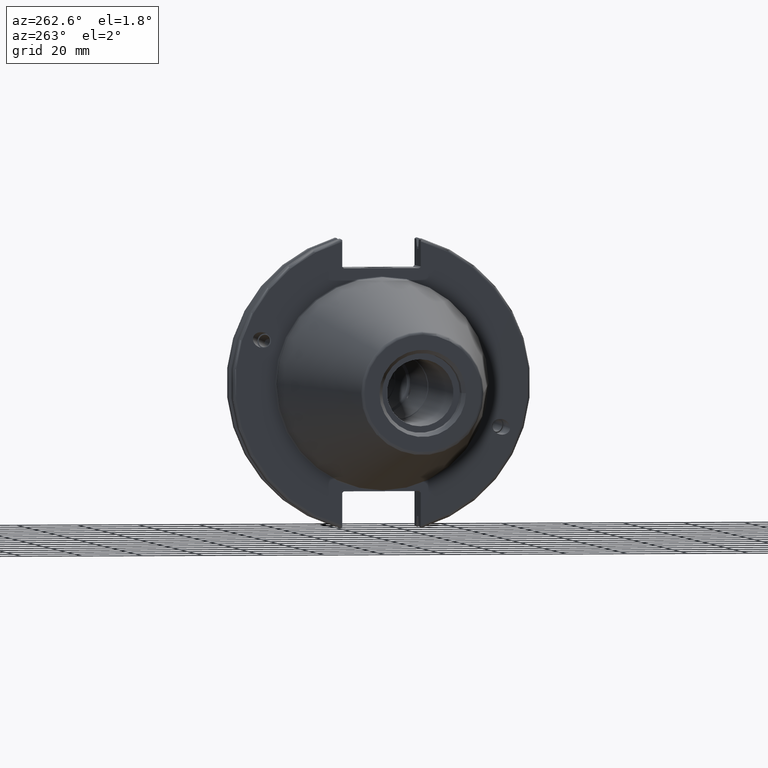
[diagram: clean part render]
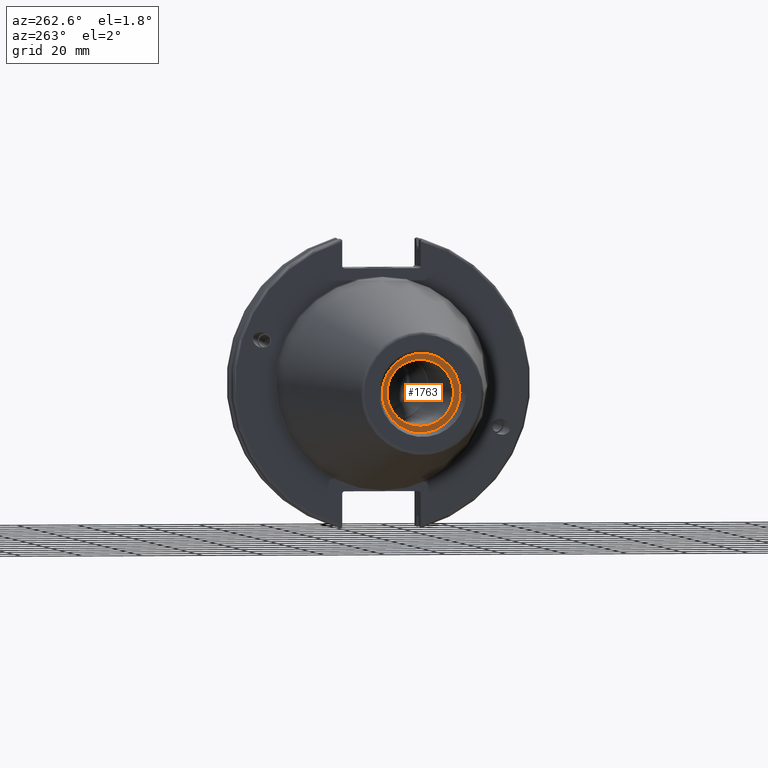
[diagram: same view with one face highlighted and labeled with its STEP entity id]
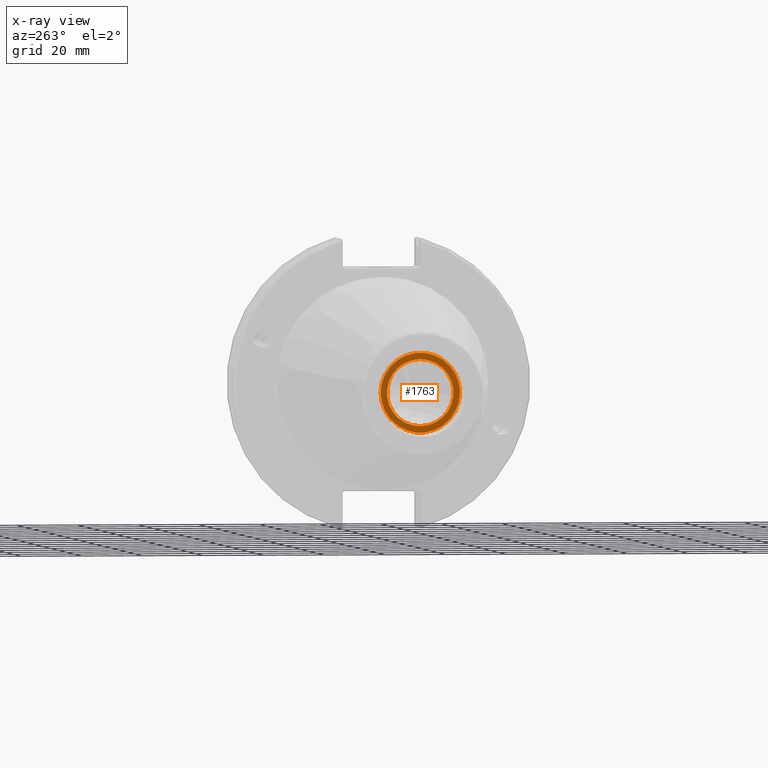
[diagram: x-ray of the same camera — body ghosted, the highlighted face saturated]
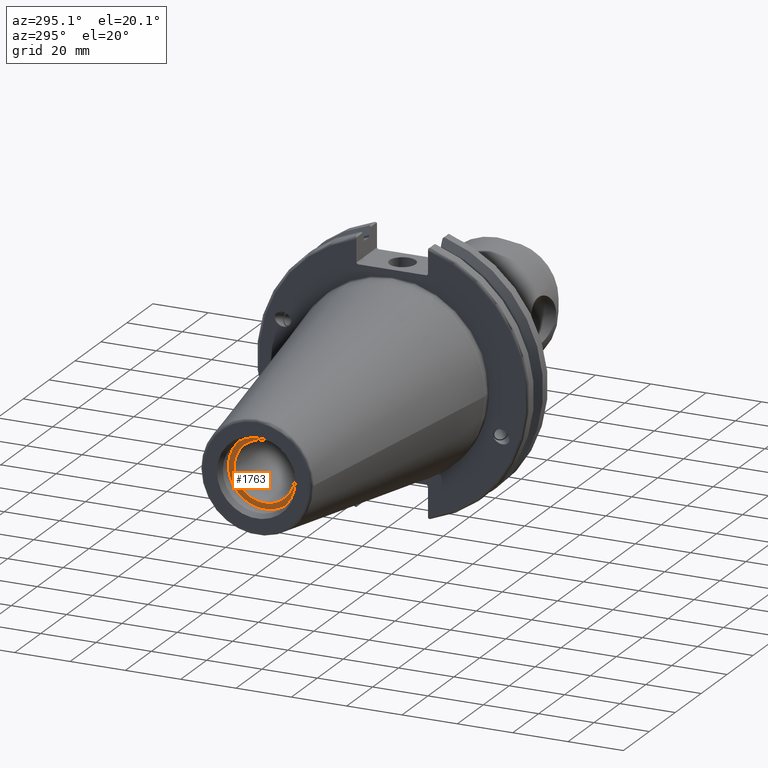
[diagram: same view with one face highlighted and labeled with its STEP entity id]
A machine part, auxiliary view. The second image highlights one B-rep face of the part: STEP entity #1763.
The next image is the same camera in x-ray: the body ghosted, the highlighted face saturated — about 0% of this face is hidden behind the body in this view.
A second angle (auxiliary view) of the same face is appended — the face is thin or edge-on in the first view.
In plain terms, the highlighted planar face has unit normal (-1, 0, 0).
Its self-contained STEP definition (entity closure, byte-faithful):
#77=FACE_BOUND('',#637,.T.);
#114=PLANE('',#1983);
#372=CIRCLE('',#1897,10.9855);
#406=CIRCLE('',#1969,13.1);
#409=CIRCLE('',#1972,13.1);
#527=FACE_OUTER_BOUND('',#636,.T.);
#636=EDGE_LOOP('',(#1672,#1673));
#637=EDGE_LOOP('',(#1674));
#806=VERTEX_POINT('',#3287);
#870=VERTEX_POINT('',#3604);
#871=VERTEX_POINT('',#3605);
#1028=EDGE_CURVE('',#806,#806,#372,.T.);
#1131=EDGE_CURVE('',#870,#871,#406,.T.);
#1135=EDGE_CURVE('',#871,#870,#409,.T.);
#1672=ORIENTED_EDGE('',*,*,#1131,.F.);
#1673=ORIENTED_EDGE('',*,*,#1135,.F.);
#1674=ORIENTED_EDGE('',*,*,#1028,.T.);
#1763=ADVANCED_FACE('',(#527,#77),#114,.T.);
#1897=AXIS2_PLACEMENT_3D('',#3288,#2258,#2259);
#1969=AXIS2_PLACEMENT_3D('',#3606,#2447,#2448);
#1972=AXIS2_PLACEMENT_3D('',#3612,#2454,#2455);
#1983=AXIS2_PLACEMENT_3D('',#3625,#2478,#2479);
#2258=DIRECTION('center_axis',(1.,0.,0.));
#2259=DIRECTION('ref_axis',(0.,0.,1.));
#2447=DIRECTION('center_axis',(1.,0.,0.));
#2448=DIRECTION('ref_axis',(0.,0.,-1.));
#2454=DIRECTION('center_axis',(1.,0.,0.));
#2455=DIRECTION('ref_axis',(0.,0.,-1.));
#2478=DIRECTION('center_axis',(-1.,0.,0.));
#2479=DIRECTION('ref_axis',(0.,0.,1.));
#3287=CARTESIAN_POINT('',(-95.25,1.34533574120333E-15,-10.9855));
#3288=CARTESIAN_POINT('Origin',(-95.25,0.,0.));
#3604=CARTESIAN_POINT('',(-95.25,13.1,0.));
#3605=CARTESIAN_POINT('',(-95.25,-13.1,-1.60428730688303E-15));
#3606=CARTESIAN_POINT('Origin',(-95.25,0.,0.));
#3612=CARTESIAN_POINT('Origin',(-95.25,0.,0.));
#3625=CARTESIAN_POINT('Origin',(-95.25,13.1,0.));